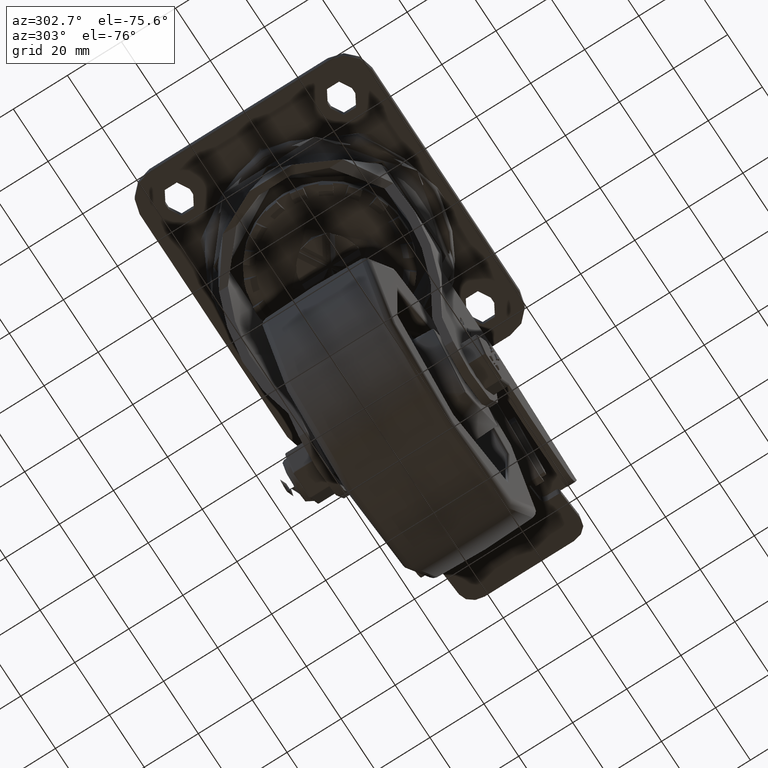
[diagram: clean part render]
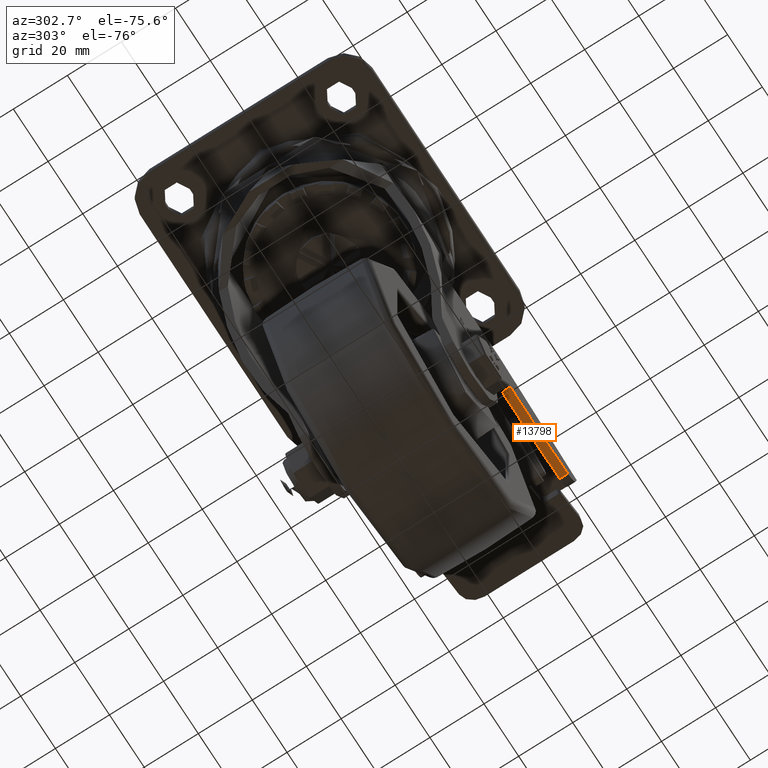
[diagram: same view with one face highlighted and labeled with its STEP entity id]
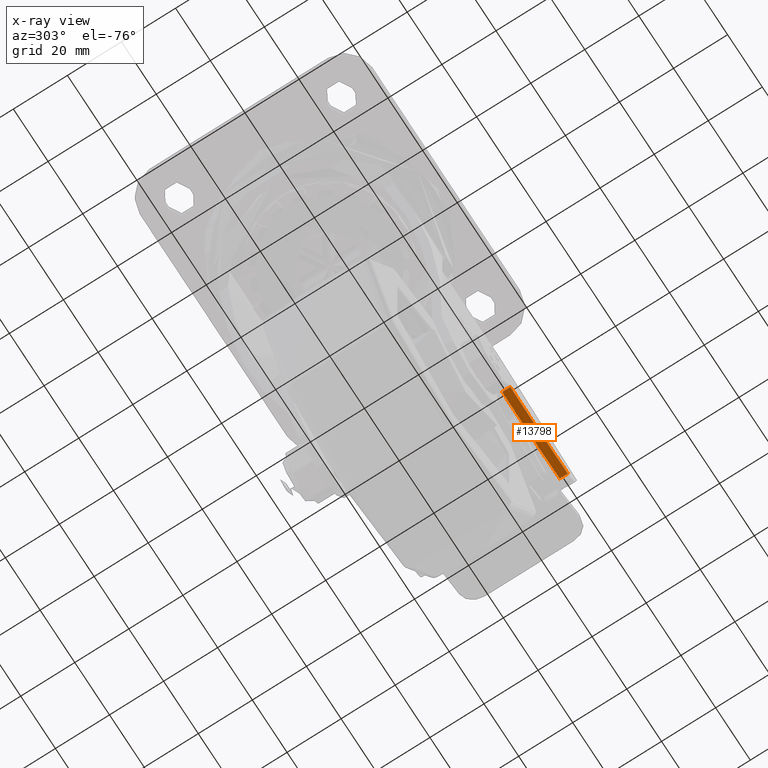
[diagram: x-ray of the same camera — body ghosted, the highlighted face saturated]
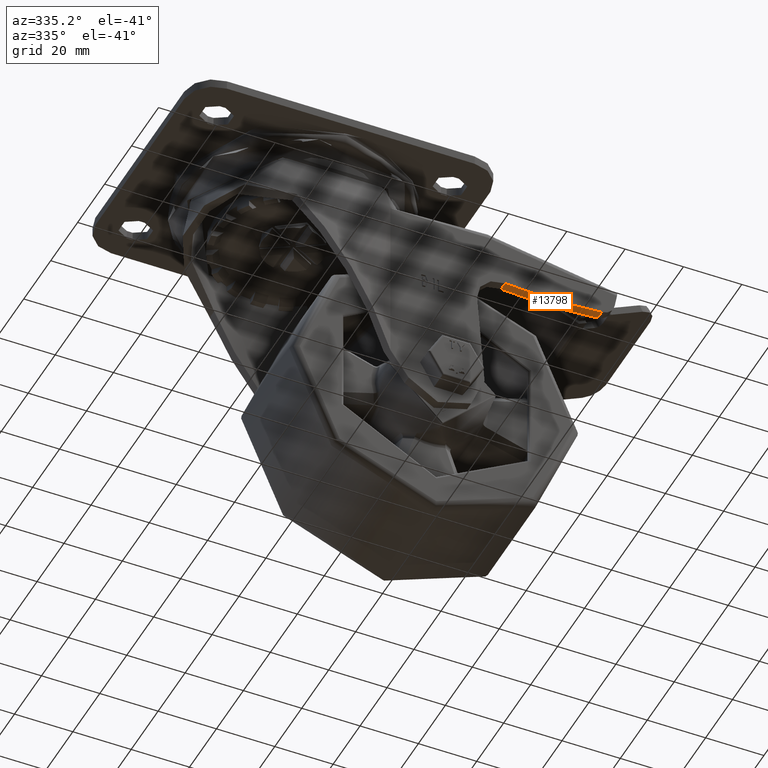
[diagram: same view with one face highlighted and labeled with its STEP entity id]
A machine part, auxiliary view. The second image highlights one B-rep face of the part: STEP entity #13798.
The next image is the same camera in x-ray: the body ghosted, the highlighted face saturated — about 0% of this face is hidden behind the body in this view.
A second angle (auxiliary view) of the same face is appended — the face is thin or edge-on in the first view.
In plain terms, the highlighted cylindrical surface (partial cylindrical patch) has radius 162.803 mm, axis along (0, -1, 0).
Its self-contained STEP definition (entity closure, byte-faithful):
#1690=LINE('',#21723,#2633);
#1729=LINE('',#23724,#2672);
#2633=VECTOR('',#17271,1000.);
#2672=VECTOR('',#17352,1000.);
#3356=CYLINDRICAL_SURFACE('',#15094,162.802573480234);
#3706=FACE_OUTER_BOUND('',#4577,.T.);
#4577=EDGE_LOOP('',(#10430,#10431,#10432,#10433));
#5453=CIRCLE('',#15082,162.802573480234);
#5456=CIRCLE('',#15090,162.802573480234);
#6279=VERTEX_POINT('',#21720);
#6280=VERTEX_POINT('',#21722);
#6291=VERTEX_POINT('',#21762);
#6314=VERTEX_POINT('',#23715);
#7748=EDGE_CURVE('',#6279,#6280,#1690,.T.);
#7771=EDGE_CURVE('',#6279,#6291,#5453,.T.);
#7801=EDGE_CURVE('',#6314,#6280,#5456,.T.);
#7806=EDGE_CURVE('',#6291,#6314,#1729,.T.);
#10430=ORIENTED_EDGE('',*,*,#7748,.F.);
#10431=ORIENTED_EDGE('',*,*,#7771,.T.);
#10432=ORIENTED_EDGE('',*,*,#7806,.T.);
#10433=ORIENTED_EDGE('',*,*,#7801,.T.);
#13798=ADVANCED_FACE('',(#3706),#3356,.T.);
#15082=AXIS2_PLACEMENT_3D('',#21764,#17310,#17311);
#15090=AXIS2_PLACEMENT_3D('',#23716,#17341,#17342);
#15094=AXIS2_PLACEMENT_3D('',#23726,#17354,#17355);
#17271=DIRECTION('',(0.,1.,0.));
#17310=DIRECTION('center_axis',(0.,1.,0.));
#17311=DIRECTION('ref_axis',(0.130526192220052,0.,-0.99144486137381));
#17341=DIRECTION('center_axis',(0.,-1.,0.));
#17342=DIRECTION('ref_axis',(0.130526192220052,0.,-0.99144486137381));
#17352=DIRECTION('',(0.,1.,0.));
#17354=DIRECTION('center_axis',(0.,-1.,0.));
#17355=DIRECTION('ref_axis',(0.130526192220052,0.,-0.99144486137381));
#21720=CARTESIAN_POINT('',(92.7790277643619,-28.5,-34.4463683844271));
#21722=CARTESIAN_POINT('',(92.7790277643619,-25.5,-34.4463683844271));
#21723=CARTESIAN_POINT('',(92.7790277643619,0.,-34.4463683844271));
#21762=CARTESIAN_POINT('',(59.6316778243392,-28.5,-34.6419018753171));
#21764=CARTESIAN_POINT('Origin',(75.2499999999999,-28.5,127.40977489541));
#23715=CARTESIAN_POINT('',(59.6316778243392,-25.5,-34.6419018753171));
#23716=CARTESIAN_POINT('Origin',(75.2499999999999,-25.5,127.40977489541));
#23724=CARTESIAN_POINT('',(59.6316778243392,0.,-34.6419018753171));
#23726=CARTESIAN_POINT('Origin',(75.2499999999999,0.,127.40977489541));